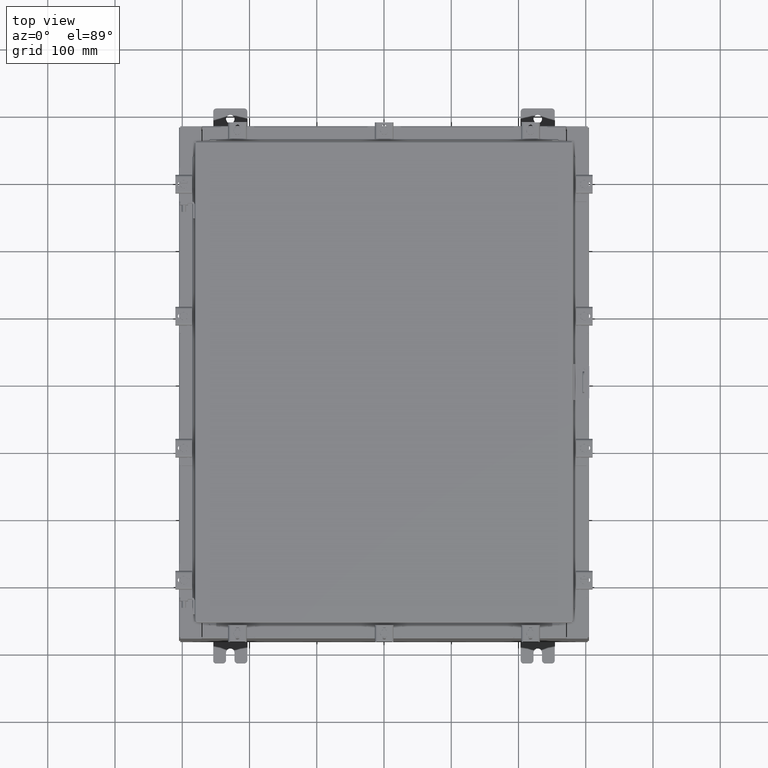
[diagram: clean part render]
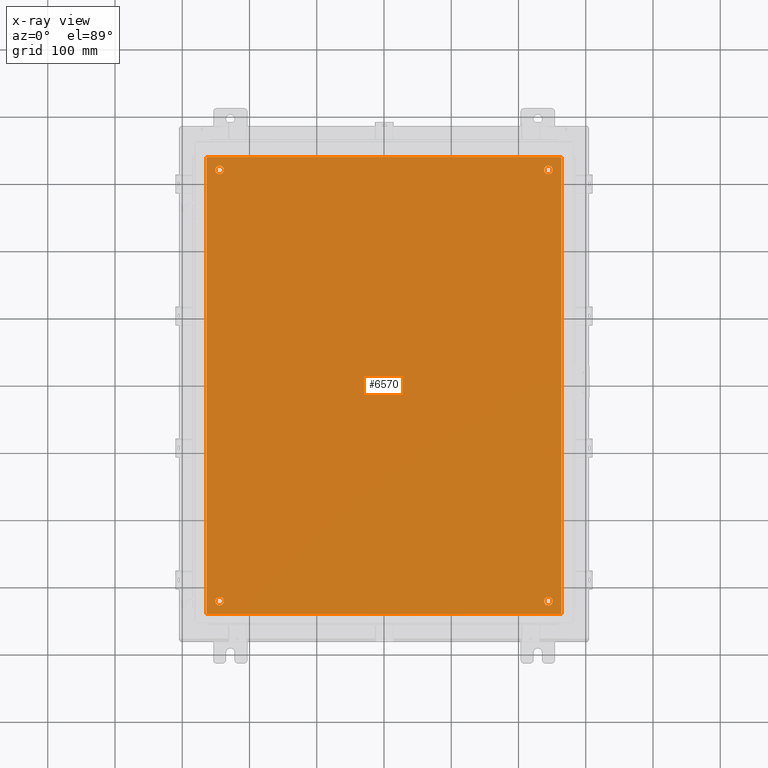
[diagram: x-ray — body ghosted, one internal face saturated and labeled with its STEP entity id]
A machine part, top view, then the same camera in x-ray: the body is ghosted and one INTERNAL B-rep face — a face not visible from any outside direction — is saturated and labeled: STEP entity #6570.
In plain terms, the highlighted planar face has unit normal (0, 0, -1).
Its self-contained STEP definition (entity closure, byte-faithful):
#855 = VERTEX_POINT ( 'NONE', #7408 ) ;
#1251 = ORIENTED_EDGE ( 'NONE', *, *, #10720, .F. ) ;
#1539 = CARTESIAN_POINT ( 'NONE',  ( 9.625000000000007100, -12.62500000000000000, -0.1039999999999999800 ) ) ;
#1794 = EDGE_CURVE ( 'NONE', #15947, #21839, #15653, .T. ) ;
#1931 = ORIENTED_EDGE ( 'NONE', *, *, #1794, .F. ) ;
#1966 = VERTEX_POINT ( 'NONE', #16588 ) ;
#2038 = FACE_BOUND ( 'NONE', #8181, .T. ) ;
#2156 = LINE ( 'NONE', #22579, #20067 ) ;
#2602 = FACE_BOUND ( 'NONE', #9168, .T. ) ;
#2981 = EDGE_CURVE ( 'NONE', #5702, #14595, #11995, .T. ) ;
#3084 = CARTESIAN_POINT ( 'NONE',  ( 9.625000000000007100, -12.62500000000000000, -0.1039999999999999800 ) ) ;
#3095 = EDGE_CURVE ( 'NONE', #18319, #8343, #15049, .T. ) ;
#3834 = VERTEX_POINT ( 'NONE', #19533 ) ;
#3895 = ORIENTED_EDGE ( 'NONE', *, *, #13926, .T. ) ;
#4193 = CARTESIAN_POINT ( 'NONE',  ( 9.375000000000007100, -12.62500000000000000, -0.1039999999999999800 ) ) ;
#4577 = DIRECTION ( 'NONE',  ( -0.0000000000000000000, -0.0000000000000000000, 1.000000000000000000 ) ) ;
#4633 = CIRCLE ( 'NONE', #15086, 0.2499999999999998100 ) ;
#4862 = ORIENTED_EDGE ( 'NONE', *, *, #13577, .T. ) ;
#4924 = DIRECTION ( 'NONE',  ( -1.000000000000000000, 0.0000000000000000000, 0.0000000000000000000 ) ) ;
#5193 = AXIS2_PLACEMENT_3D ( 'NONE', #14812, #8810, #17106 ) ;
#5534 = VECTOR ( 'NONE', #23068, 39.37007874015748100 ) ;
#5634 = CARTESIAN_POINT ( 'NONE',  ( 9.625000000000007100, 12.62500000000000000, -0.1039999999999999800 ) ) ;
#5702 = VERTEX_POINT ( 'NONE', #19397 ) ;
#6169 = EDGE_CURVE ( 'NONE', #3834, #19071, #18879, .T. ) ;
#6311 = EDGE_CURVE ( 'NONE', #21839, #21495, #20222, .T. ) ;
#6545 = ORIENTED_EDGE ( 'NONE', *, *, #2981, .T. ) ;
#6570 = ADVANCED_FACE ( 'NONE', ( #2602, #2038, #16392, #6828, #11664 ), #9835, .T. ) ;
#6828 = FACE_BOUND ( 'NONE', #22332, .T. ) ;
#6863 = AXIS2_PLACEMENT_3D ( 'NONE', #8424, #20847, #10231 ) ;
#7408 = CARTESIAN_POINT ( 'NONE',  ( 9.875000000000007100, 12.62500000000000000, -0.1039999999999999800 ) ) ;
#7454 = DIRECTION ( 'NONE',  ( -1.000000000000000000, 0.0000000000000000000, 0.0000000000000000000 ) ) ;
#7487 = ORIENTED_EDGE ( 'NONE', *, *, #3095, .T. ) ;
#7987 = ORIENTED_EDGE ( 'NONE', *, *, #6169, .T. ) ;
#8181 = EDGE_LOOP ( 'NONE', ( #16568, #7487 ) ) ;
#8343 = VERTEX_POINT ( 'NONE', #14960 ) ;
#8424 = CARTESIAN_POINT ( 'NONE',  ( -9.625000000000007100, 12.62500000000000000, -0.1039999999999999800 ) ) ;
#8548 = DIRECTION ( 'NONE',  ( -1.000000000000000000, 0.0000000000000000000, -0.0000000000000000000 ) ) ;
#8797 = AXIS2_PLACEMENT_3D ( 'NONE', #11255, #11175, #10196 ) ;
#8810 = DIRECTION ( 'NONE',  ( -0.0000000000000000000, -0.0000000000000000000, 1.000000000000000000 ) ) ;
#8868 = AXIS2_PLACEMENT_3D ( 'NONE', #5634, #18177, #7454 ) ;
#8941 = CARTESIAN_POINT ( 'NONE',  ( 10.38300000000000100, 13.38299999999999700, -0.1040000000000009100 ) ) ;
#9168 = EDGE_LOOP ( 'NONE', ( #7987, #16963 ) ) ;
#9305 = DIRECTION ( 'NONE',  ( -0.0000000000000000000, -0.0000000000000000000, 1.000000000000000000 ) ) ;
#9621 = EDGE_CURVE ( 'NONE', #19071, #3834, #12089, .T. ) ;
#9698 = CARTESIAN_POINT ( 'NONE',  ( -9.875000000000007100, -12.62500000000000000, -0.1039999999999999800 ) ) ;
#9835 = PLANE ( 'NONE',  #20247 ) ;
#9861 = CARTESIAN_POINT ( 'NONE',  ( -10.38300000000000100, 13.38299999999999700, -0.1040000000000020100 ) ) ;
#10196 = DIRECTION ( 'NONE',  ( -1.000000000000000000, 0.0000000000000000000, 0.0000000000000000000 ) ) ;
#10231 = DIRECTION ( 'NONE',  ( -1.000000000000000000, 0.0000000000000000000, 0.0000000000000000000 ) ) ;
#10610 = DIRECTION ( 'NONE',  ( 1.000000000000000000, -0.0000000000000000000, -0.0000000000000000000 ) ) ;
#10720 = EDGE_CURVE ( 'NONE', #15612, #15947, #19789, .T. ) ;
#11006 = CARTESIAN_POINT ( 'NONE',  ( -10.50000000000000200, -13.38299999999999900, -0.1040000000000009100 ) ) ;
#11049 = EDGE_LOOP ( 'NONE', ( #3895, #15902 ) ) ;
#11175 = DIRECTION ( 'NONE',  ( -0.0000000000000000000, -0.0000000000000000000, 1.000000000000000000 ) ) ;
#11180 = EDGE_CURVE ( 'NONE', #21495, #15612, #2156, .T. ) ;
#11255 = CARTESIAN_POINT ( 'NONE',  ( -9.625000000000007100, -12.62500000000000000, -0.1039999999999999800 ) ) ;
#11383 = VECTOR ( 'NONE', #13474, 39.37007874015748100 ) ;
#11645 = DIRECTION ( 'NONE',  ( 0.0000000000000000000, 0.0000000000000000000, -1.000000000000000000 ) ) ;
#11664 = FACE_OUTER_BOUND ( 'NONE', #15796, .T. ) ;
#11722 = CARTESIAN_POINT ( 'NONE',  ( 0.0000000000000000000, 0.0000000000000000000, -0.1039999999999999800 ) ) ;
#11995 = CIRCLE ( 'NONE', #5193, 0.2500000000000008900 ) ;
#12089 = CIRCLE ( 'NONE', #15894, 0.2500000000000008900 ) ;
#13343 = DIRECTION ( 'NONE',  ( -1.000000000000000000, 0.0000000000000000000, 0.0000000000000000000 ) ) ;
#13474 = DIRECTION ( 'NONE',  ( 0.0000000000000000000, 1.000000000000000000, 0.0000000000000000000 ) ) ;
#13577 = EDGE_CURVE ( 'NONE', #14595, #5702, #18102, .T. ) ;
#13904 = AXIS2_PLACEMENT_3D ( 'NONE', #3084, #15682, #4924 ) ;
#13926 = EDGE_CURVE ( 'NONE', #855, #1966, #17268, .T. ) ;
#14088 = CARTESIAN_POINT ( 'NONE',  ( 10.38300000000000100, -13.38299999999999700, -0.1040000000000009100 ) ) ;
#14595 = VERTEX_POINT ( 'NONE', #19613 ) ;
#14812 = CARTESIAN_POINT ( 'NONE',  ( -9.625000000000007100, 12.62500000000000000, -0.1039999999999999800 ) ) ;
#14960 = CARTESIAN_POINT ( 'NONE',  ( 9.875000000000007100, -12.62500000000000000, -0.1039999999999999800 ) ) ;
#15049 = CIRCLE ( 'NONE', #17216, 0.2499999999999998100 ) ;
#15086 = AXIS2_PLACEMENT_3D ( 'NONE', #19932, #9305, #21701 ) ;
#15339 = CARTESIAN_POINT ( 'NONE',  ( -9.625000000000007100, -12.62500000000000000, -0.1039999999999999800 ) ) ;
#15612 = VERTEX_POINT ( 'NONE', #9861 ) ;
#15653 = LINE ( 'NONE', #11006, #19783 ) ;
#15682 = DIRECTION ( 'NONE',  ( -0.0000000000000000000, -0.0000000000000000000, 1.000000000000000000 ) ) ;
#15694 = ORIENTED_EDGE ( 'NONE', *, *, #6311, .F. ) ;
#15796 = EDGE_LOOP ( 'NONE', ( #1931, #1251, #16350, #15694 ) ) ;
#15894 = AXIS2_PLACEMENT_3D ( 'NONE', #15339, #4577, #17122 ) ;
#15902 = ORIENTED_EDGE ( 'NONE', *, *, #22249, .T. ) ;
#15947 = VERTEX_POINT ( 'NONE', #16248 ) ;
#16248 = CARTESIAN_POINT ( 'NONE',  ( -10.38300000000000100, -13.38299999999999900, -0.1040000000000009100 ) ) ;
#16350 = ORIENTED_EDGE ( 'NONE', *, *, #11180, .F. ) ;
#16392 = FACE_BOUND ( 'NONE', #11049, .T. ) ;
#16568 = ORIENTED_EDGE ( 'NONE', *, *, #19792, .T. ) ;
#16588 = CARTESIAN_POINT ( 'NONE',  ( 9.375000000000007100, 12.62500000000000000, -0.1039999999999999800 ) ) ;
#16963 = ORIENTED_EDGE ( 'NONE', *, *, #9621, .T. ) ;
#17106 = DIRECTION ( 'NONE',  ( -1.000000000000000000, 0.0000000000000000000, 0.0000000000000000000 ) ) ;
#17122 = DIRECTION ( 'NONE',  ( -1.000000000000000000, 0.0000000000000000000, 0.0000000000000000000 ) ) ;
#17216 = AXIS2_PLACEMENT_3D ( 'NONE', #1539, #20030, #13343 ) ;
#17268 = CIRCLE ( 'NONE', #8868, 0.2499999999999998100 ) ;
#18102 = CIRCLE ( 'NONE', #6863, 0.2500000000000008900 ) ;
#18177 = DIRECTION ( 'NONE',  ( -0.0000000000000000000, -0.0000000000000000000, 1.000000000000000000 ) ) ;
#18319 = VERTEX_POINT ( 'NONE', #4193 ) ;
#18879 = CIRCLE ( 'NONE', #8797, 0.2500000000000008900 ) ;
#19071 = VERTEX_POINT ( 'NONE', #9698 ) ;
#19114 = DIRECTION ( 'NONE',  ( -1.000000000000000000, -0.0000000000000000000, -0.0000000000000000000 ) ) ;
#19196 = CARTESIAN_POINT ( 'NONE',  ( 10.38300000000000100, -13.38299999999999700, -0.1040000000000009100 ) ) ;
#19397 = CARTESIAN_POINT ( 'NONE',  ( -9.375000000000007100, 12.62500000000000000, -0.1039999999999999800 ) ) ;
#19533 = CARTESIAN_POINT ( 'NONE',  ( -9.375000000000007100, -12.62500000000000000, -0.1039999999999999800 ) ) ;
#19613 = CARTESIAN_POINT ( 'NONE',  ( -9.875000000000007100, 12.62500000000000000, -0.1039999999999999800 ) ) ;
#19783 = VECTOR ( 'NONE', #10610, 39.37007874015748100 ) ;
#19789 = LINE ( 'NONE', #21264, #5534 ) ;
#19792 = EDGE_CURVE ( 'NONE', #8343, #18319, #23123, .T. ) ;
#19932 = CARTESIAN_POINT ( 'NONE',  ( 9.625000000000007100, 12.62500000000000000, -0.1039999999999999800 ) ) ;
#20030 = DIRECTION ( 'NONE',  ( -0.0000000000000000000, -0.0000000000000000000, 1.000000000000000000 ) ) ;
#20067 = VECTOR ( 'NONE', #19114, 39.37007874015748100 ) ;
#20222 = LINE ( 'NONE', #14088, #11383 ) ;
#20247 = AXIS2_PLACEMENT_3D ( 'NONE', #11722, #11645, #8548 ) ;
#20847 = DIRECTION ( 'NONE',  ( -0.0000000000000000000, -0.0000000000000000000, 1.000000000000000000 ) ) ;
#21264 = CARTESIAN_POINT ( 'NONE',  ( -10.38300000000000100, 13.38299999999999700, -0.1040000000000020100 ) ) ;
#21495 = VERTEX_POINT ( 'NONE', #8941 ) ;
#21701 = DIRECTION ( 'NONE',  ( -1.000000000000000000, 0.0000000000000000000, 0.0000000000000000000 ) ) ;
#21839 = VERTEX_POINT ( 'NONE', #19196 ) ;
#22249 = EDGE_CURVE ( 'NONE', #1966, #855, #4633, .T. ) ;
#22332 = EDGE_LOOP ( 'NONE', ( #6545, #4862 ) ) ;
#22579 = CARTESIAN_POINT ( 'NONE',  ( 10.50000000000000400, 13.38299999999999900, -0.1040000000000009100 ) ) ;
#23068 = DIRECTION ( 'NONE',  ( 0.0000000000000000000, -1.000000000000000000, 0.0000000000000000000 ) ) ;
#23123 = CIRCLE ( 'NONE', #13904, 0.2499999999999998100 ) ;